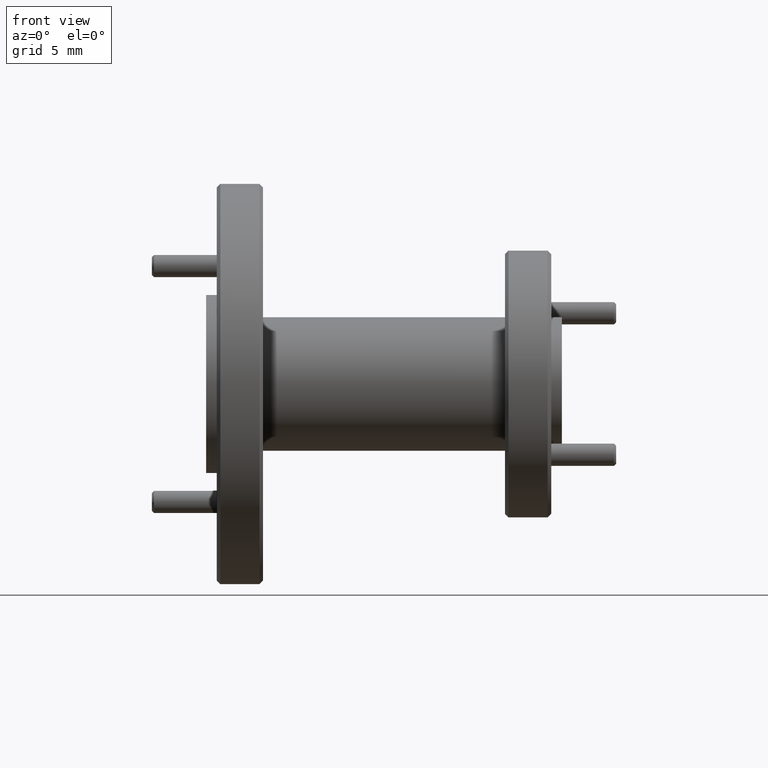
[diagram: clean part render]
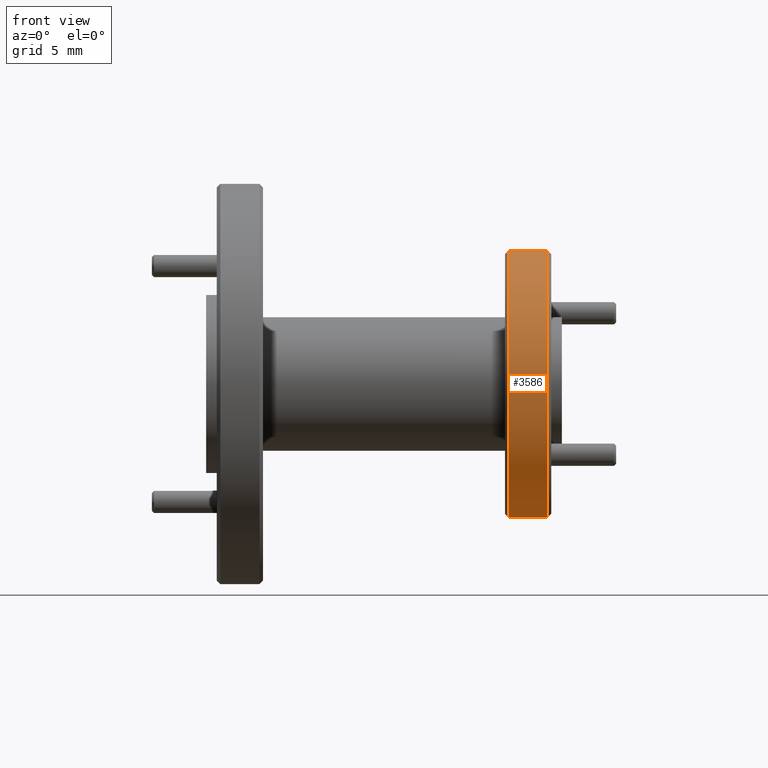
[diagram: same view with one face highlighted and labeled with its STEP entity id]
A machine part, front view. The second image highlights one B-rep face of the part: STEP entity #3586.
In plain terms, the highlighted cylindrical surface (partial cylindrical patch) has radius 9.525 mm, axis along (-1, 0, 0).
Its self-contained STEP definition (entity closure, byte-faithful):
#73 = CARTESIAN_POINT ( 'NONE',  ( -1.276036104178505100, 0.8711428545117682100, -0.1088045077918743000 ) ) ;
#95 = CIRCLE ( 'NONE', #3274, 0.3749999999999999400 ) ;
#223 = DIRECTION ( 'NONE',  ( -1.000000000000000000, 1.598615139904834900E-061, 1.956366136326174300E-050 ) ) ;
#371 = VECTOR ( 'NONE', #1932, 39.37007874015748100 ) ;
#486 = DIRECTION ( 'NONE',  ( 0.0000000000000000000, 0.0000000000000000000, 1.000000000000000000 ) ) ;
#499 = CIRCLE ( 'NONE', #1686, 0.3749999999999999400 ) ;
#549 = LINE ( 'NONE', #2551, #371 ) ;
#615 = CYLINDRICAL_SURFACE ( 'NONE', #953, 0.3749999999999999400 ) ;
#803 = DIRECTION ( 'NONE',  ( -1.000000000000000000, 1.598615139904834900E-061, 1.956366136326174500E-050 ) ) ;
#873 = ORIENTED_EDGE ( 'NONE', *, *, #2242, .T. ) ;
#881 = CARTESIAN_POINT ( 'NONE',  ( -1.276036104178505100, 0.8711428545117682100, 0.6411954922081256600 ) ) ;
#913 = ORIENTED_EDGE ( 'NONE', *, *, #2706, .F. ) ;
#953 = AXIS2_PLACEMENT_3D ( 'NONE', #2020, #2009, #1995 ) ;
#1146 = EDGE_LOOP ( 'NONE', ( #913, #1650, #873, #3399 ) ) ;
#1527 = EDGE_CURVE ( 'NONE', #2124, #1648, #95, .T. ) ;
#1648 = VERTEX_POINT ( 'NONE', #2396 ) ;
#1650 = ORIENTED_EDGE ( 'NONE', *, *, #1527, .T. ) ;
#1686 = AXIS2_PLACEMENT_3D ( 'NONE', #3753, #2292, #3208 ) ;
#1743 = VERTEX_POINT ( 'NONE', #881 ) ;
#1825 = FACE_OUTER_BOUND ( 'NONE', #1146, .T. ) ;
#1908 = VECTOR ( 'NONE', #223, 39.37007874015748100 ) ;
#1932 = DIRECTION ( 'NONE',  ( -1.000000000000000000, 1.598615139904834900E-061, 1.956366136326174300E-050 ) ) ;
#1995 = DIRECTION ( 'NONE',  ( 0.0000000000000000000, 0.0000000000000000000, 1.000000000000000000 ) ) ;
#2009 = DIRECTION ( 'NONE',  ( -1.000000000000000000, 1.598615139904834900E-061, 1.956366136326174500E-050 ) ) ;
#2020 = CARTESIAN_POINT ( 'NONE',  ( -2.126036104178505900, 0.8711428545117682100, 0.2661954922081256600 ) ) ;
#2124 = VERTEX_POINT ( 'NONE', #2596 ) ;
#2242 = EDGE_CURVE ( 'NONE', #1648, #1743, #3499, .T. ) ;
#2292 = DIRECTION ( 'NONE',  ( -1.000000000000000000, 1.598615139904834900E-061, 1.956366136326174500E-050 ) ) ;
#2320 = CARTESIAN_POINT ( 'NONE',  ( -1.166036104178505700, 0.8711428545117682100, 0.2661954922081256600 ) ) ;
#2396 = CARTESIAN_POINT ( 'NONE',  ( -1.166036104178505700, 0.8711428545117682100, 0.6411954922081256600 ) ) ;
#2551 = CARTESIAN_POINT ( 'NONE',  ( -2.126036104178505900, 0.8711428545117682100, -0.1088045077918743700 ) ) ;
#2596 = CARTESIAN_POINT ( 'NONE',  ( -1.166036104178505700, 0.8711428545117682100, -0.1088045077918743000 ) ) ;
#2676 = VERTEX_POINT ( 'NONE', #73 ) ;
#2684 = CARTESIAN_POINT ( 'NONE',  ( -2.126036104178505900, 0.8711428545117682100, 0.6411954922081256600 ) ) ;
#2706 = EDGE_CURVE ( 'NONE', #2124, #2676, #549, .T. ) ;
#3208 = DIRECTION ( 'NONE',  ( 0.0000000000000000000, 0.0000000000000000000, -1.000000000000000000 ) ) ;
#3215 = EDGE_CURVE ( 'NONE', #2676, #1743, #499, .T. ) ;
#3274 = AXIS2_PLACEMENT_3D ( 'NONE', #2320, #803, #486 ) ;
#3399 = ORIENTED_EDGE ( 'NONE', *, *, #3215, .F. ) ;
#3499 = LINE ( 'NONE', #2684, #1908 ) ;
#3586 = ADVANCED_FACE ( 'NONE', ( #1825 ), #615, .T. ) ;
#3753 = CARTESIAN_POINT ( 'NONE',  ( -1.276036104178505100, 0.8711428545117682100, 0.2661954922081256600 ) ) ;